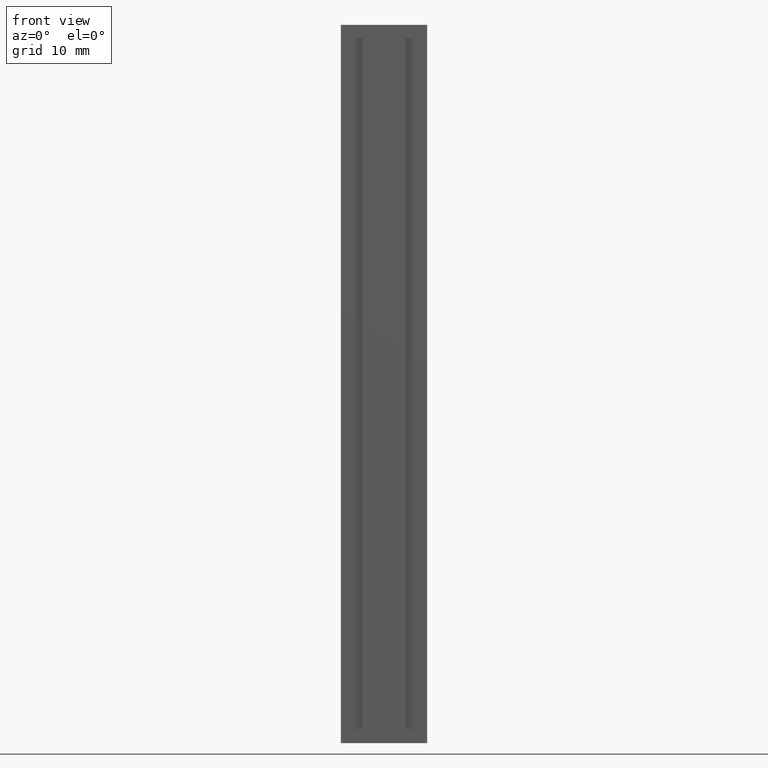
[diagram: clean part render]
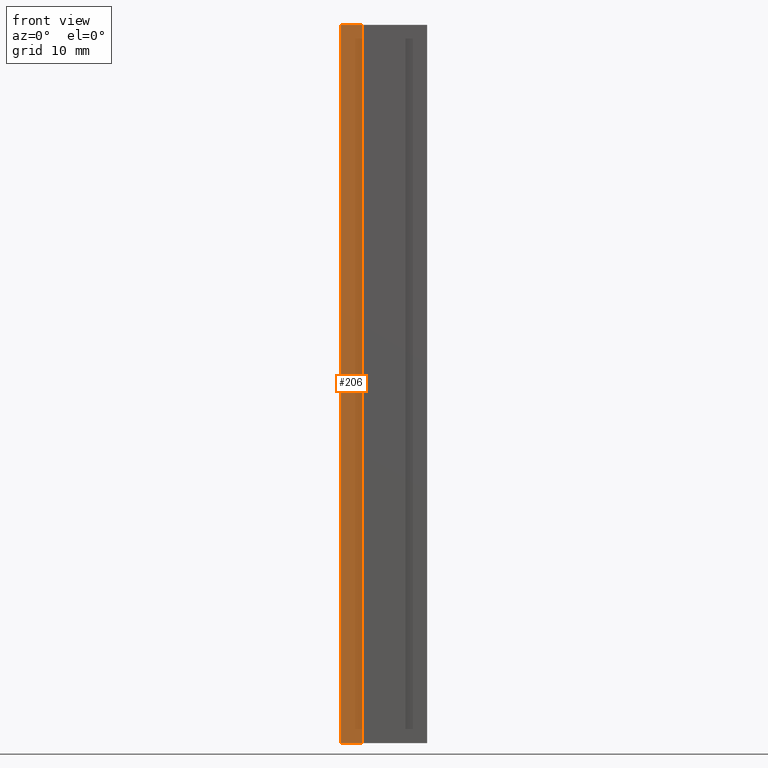
[diagram: same view with one face highlighted and labeled with its STEP entity id]
A machine part, front view. The second image highlights one B-rep face of the part: STEP entity #206.
In plain terms, the highlighted planar face has unit normal (0, -1, 0).
Its self-contained STEP definition (entity closure, byte-faithful):
#20=FACE_OUTER_BOUND('',#31,.T.);
#31=EDGE_LOOP('',(#158,#159,#160,#161));
#43=LINE('',#309,#70);
#53=LINE('',#328,#80);
#54=LINE('',#331,#81);
#55=LINE('',#332,#82);
#70=VECTOR('',#253,10.);
#80=VECTOR('',#269,10.);
#81=VECTOR('',#272,10.);
#82=VECTOR('',#273,10.);
#97=VERTEX_POINT('',#306);
#98=VERTEX_POINT('',#308);
#104=VERTEX_POINT('',#326);
#105=VERTEX_POINT('',#330);
#115=EDGE_CURVE('',#98,#97,#43,.T.);
#125=EDGE_CURVE('',#104,#97,#53,.T.);
#126=EDGE_CURVE('',#104,#105,#54,.T.);
#127=EDGE_CURVE('',#105,#98,#55,.T.);
#158=ORIENTED_EDGE('',*,*,#126,.T.);
#159=ORIENTED_EDGE('',*,*,#127,.T.);
#160=ORIENTED_EDGE('',*,*,#115,.T.);
#161=ORIENTED_EDGE('',*,*,#125,.F.);
#195=PLANE('',#237);
#206=ADVANCED_FACE('',(#20),#195,.T.);
#237=AXIS2_PLACEMENT_3D('',#329,#270,#271);
#253=DIRECTION('',(1.,1.38777878078145E-16,0.));
#269=DIRECTION('',(0.,0.,-1.));
#270=DIRECTION('center_axis',(1.38777878078145E-16,-1.,0.));
#271=DIRECTION('ref_axis',(0.,0.,-1.));
#272=DIRECTION('',(-1.,-1.38777878078145E-16,0.));
#273=DIRECTION('',(0.,0.,-1.));
#306=CARTESIAN_POINT('',(-3.,1.,-50.));
#308=CARTESIAN_POINT('',(-6.,0.999999999999999,-50.));
#309=CARTESIAN_POINT('',(-3.,1.,-50.));
#326=CARTESIAN_POINT('',(-3.,1.,50.));
#328=CARTESIAN_POINT('',(-3.,1.,0.));
#329=CARTESIAN_POINT('Origin',(-3.,1.,0.));
#330=CARTESIAN_POINT('',(-6.,0.999999999999999,50.));
#331=CARTESIAN_POINT('',(-3.,1.,50.));
#332=CARTESIAN_POINT('',(-6.,0.999999999999999,0.));